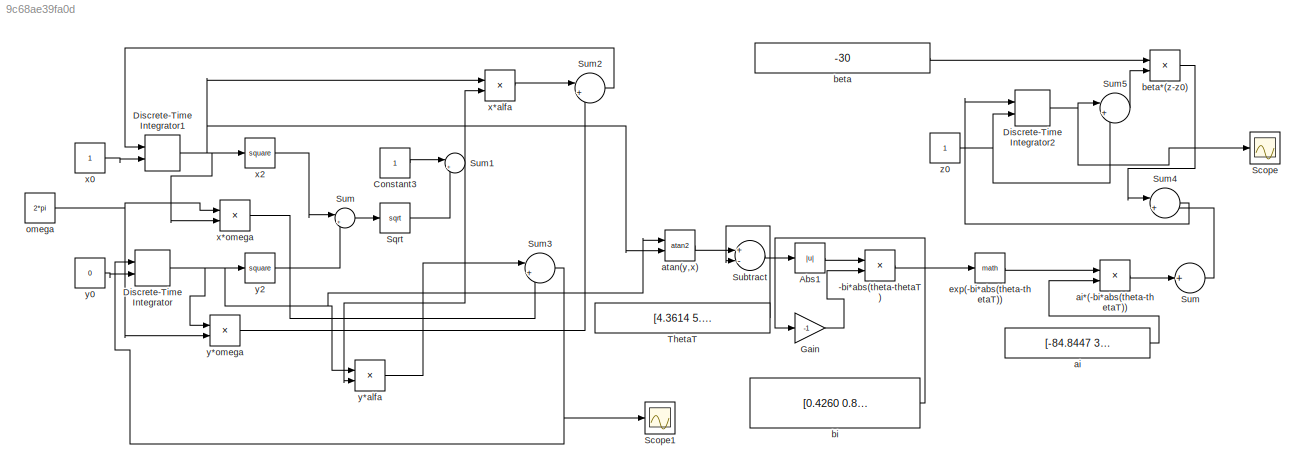
MODEL slx_9c68ae39fa0d
KIND model
CONFIG AbsTol = auto
CONFIG FixedStep = 0.001
CONFIG MaxStep = auto
CONFIG MinStep = auto
CONFIG RelTol = 1e-3
CONFIG SampleTimeConstraint = Unconstrained
CONFIG Solver = ode1
CONFIG SolverMode = Auto
CONFIG SolverName = ode1
CONFIG StartTime = 0.0
CONFIG StopTime = 3
BLOCK [Product] -bi*abs(theta-thetaT)
  InputSameDT = off
  OutDataTypeStr = Inherit: Inherit via internal rule
  Ports = [2, 1]
  RndMeth = Floor
  SaturateOnIntegerOverflow = off
BLOCK [Abs] Abs1
  SaturateOnIntegerOverflow = off
BLOCK [Constant] Constant3
BLOCK [DiscreteIntegrator] Discrete-Time Integrator
  ICPrevOutput = DiscIntNeverNeededParam
  ICPrevScaledInput = DiscIntNeverNeededParam
  InitialConditionSetting = State (most efficient)
  InitialConditionSource = external
  Ports = [2, 1]
  SampleTime = 0.001
BLOCK [DiscreteIntegrator] Discrete-Time Integrator1
  ICPrevOutput = DiscIntNeverNeededParam
  ICPrevScaledInput = DiscIntNeverNeededParam
  InitialConditionSetting = State (most efficient)
  InitialConditionSource = external
  Ports = [2, 1]
  SampleTime = 0.001
BLOCK [DiscreteIntegrator] Discrete-Time Integrator2
  ICPrevOutput = DiscIntNeverNeededParam
  ICPrevScaledInput = DiscIntNeverNeededParam
  InitialConditionSetting = State (most efficient)
  InitialConditionSource = external
  Ports = [2, 1]
  SampleTime = 0.001
BLOCK [Gain] Gain
  Gain = -1
  OutDataTypeStr = Inherit: Inherit via internal rule
  ParamDataTypeStr = Inherit: Inherit via internal rule
  SaturateOnIntegerOverflow = off
BLOCK [Scope] Scope
  Ports = [1]
  ScopeSpecificationString = Simulink.scopes.TimeScopeBlockCfg('CurrentConfiguration', extmgr.ConfigurationSet(extmgr.Configuration('Core','General UI',true),extmgr.Configuration('Core','Source UI',true),extmgr.Configuration('Sources','WiredSimulink',true,'SampleTime','0.001'),extmgr.Configuration('Visuals','Time Domain',true,'SerializedDisplays',{struct('MinYLimReal','-2.79316','MaxYLimReal','1.42146','YLabelReal','','MinYLi...<+1496ch>
BLOCK [Scope] Scope1
  Ports = [1]
  ScopeSpecificationString = Simulink.scopes.TimeScopeBlockCfg('CurrentConfiguration', extmgr.ConfigurationSet(extmgr.Configuration('Core','General UI',true),extmgr.Configuration('Core','Source UI',true),extmgr.Configuration('Sources','WiredSimulink',true,'DataLoggingVariableName','ScopeData1'),extmgr.Configuration('Visuals','Time Domain',true,'SerializedDisplays',{struct('MinYLimReal','-7.99719','MaxYLimReal','8.00112','YLab...<+1363ch>
BLOCK [Sqrt] Sqrt
BLOCK [Sum] Subtract
  InputSameDT = off
  Inputs = +-
  OutDataTypeStr = Inherit: Inherit via internal rule
  Ports = [2, 1]
  SaturateOnIntegerOverflow = off
BLOCK [Sum] Sum
  IconShape = round
  InputSameDT = off
  Inputs = |++
  OutDataTypeStr = Inherit: Inherit via internal rule
  Ports = [2, 1]
  SaturateOnIntegerOverflow = off
BLOCK [Sum] Sum 
  InputSameDT = off
  Inputs = +
  OutDataTypeStr = Inherit: Inherit via internal rule
  Ports = [1, 1]
  SaturateOnIntegerOverflow = off
BLOCK [Sum] Sum1
  IconShape = round
  InputSameDT = off
  Inputs = |+-
  OutDataTypeStr = Inherit: Inherit via internal rule
  Ports = [2, 1]
  SaturateOnIntegerOverflow = off
BLOCK [Sum] Sum2
  IconShape = round
  InputSameDT = off
  Inputs = |+-
  OutDataTypeStr = Inherit: Inherit via internal rule
  Ports = [2, 1]
  SaturateOnIntegerOverflow = off
BLOCK [Sum] Sum3
  IconShape = round
  InputSameDT = off
  Inputs = |++
  OutDataTypeStr = Inherit: Inherit via internal rule
  Ports = [2, 1]
  SaturateOnIntegerOverflow = off
BLOCK [Sum] Sum4
  IconShape = round
  InputSameDT = off
  Inputs = |++
  OutDataTypeStr = Inherit: Inherit via internal rule
  Ports = [2, 1]
  SaturateOnIntegerOverflow = off
BLOCK [Sum] Sum5
  IconShape = round
  InputSameDT = off
  Inputs = |+-
  OutDataTypeStr = Inherit: Inherit via internal rule
  Ports = [2, 1]
  SaturateOnIntegerOverflow = off
BLOCK [Constant] ThetaT
  Value = [4.3614 5.6522]
BLOCK [Constant] ai
  Value = [-84.8447 35.2495]
BLOCK [Product] ai*(-bi*abs(theta-thetaT))
  InputSameDT = off
  OutDataTypeStr = Inherit: Inherit via internal rule
  Ports = [2, 1]
  RndMeth = Floor
  SaturateOnIntegerOverflow = off
BLOCK [Trigonometry] atan(y,x)
  Operator = atan2
  Ports = [2, 1]
BLOCK [Constant] beta
  Value = -30
BLOCK [Product] beta*(z-z0)
  InputSameDT = off
  OutDataTypeStr = Inherit: Inherit via internal rule
  Ports = [2, 1]
  RndMeth = Floor
  SaturateOnIntegerOverflow = off
BLOCK [Constant] bi
  Value = [0.4260 0.8688]
BLOCK [Math] exp(-bi*abs(theta-thetaT))
  Ports = [1, 1]
BLOCK [Constant] omega
  Value = 2*pi
BLOCK [Product] x*alfa
  InputSameDT = off
  OutDataTypeStr = Inherit: Inherit via internal rule
  Ports = [2, 1]
  RndMeth = Floor
  SaturateOnIntegerOverflow = off
BLOCK [Product] x*omega
  InputSameDT = off
  OutDataTypeStr = Inherit: Inherit via internal rule
  Ports = [2, 1]
  RndMeth = Floor
  SaturateOnIntegerOverflow = off
BLOCK [Constant] x0
BLOCK [Math] x2
  Operator = square
  Ports = [1, 1]
BLOCK [Product] y*alfa
  InputSameDT = off
  OutDataTypeStr = Inherit: Inherit via internal rule
  Ports = [2, 1]
  RndMeth = Floor
  SaturateOnIntegerOverflow = off
BLOCK [Product] y*omega
  InputSameDT = off
  OutDataTypeStr = Inherit: Inherit via internal rule
  Ports = [2, 1]
  RndMeth = Floor
  SaturateOnIntegerOverflow = off
BLOCK [Constant] y0
  Value = 0
BLOCK [Math] y2
  Operator = square
  Ports = [1, 1]
BLOCK [Constant] z0
LINE -bi*abs(theta-thetaT):1 -> exp(-bi*abs(theta-thetaT)):1
LINE Abs1:1 -> -bi*abs(theta-thetaT):1
LINE Constant3:1 -> Sum1:1
NET Discrete-Time Integrator1:1 -> atan(y,x):2, x*alfa:1, x*omega:2, x2:1
NET Discrete-Time Integrator2:1 -> Scope:1, Sum5:1
NET Discrete-Time Integrator:1 -> atan(y,x):1, y*alfa:1, y*omega:1, y2:1
LINE Gain:1 -> -bi*abs(theta-thetaT):2
LINE Sqrt:1 -> Sum1:2
LINE Subtract:1 -> Abs1:1
LINE Sum :1 -> Sum4:2
NET Sum1:1 -> x*alfa:2, y*alfa:2
LINE Sum2:1 -> Discrete-Time Integrator1:1
NET Sum3:1 -> Discrete-Time Integrator:1, Scope1:1
LINE Sum4:1 -> Discrete-Time Integrator2:1
LINE Sum5:1 -> beta*(z-z0):2
LINE Sum:1 -> Sqrt:1
LINE ThetaT:1 -> Subtract:2
LINE ai*(-bi*abs(theta-thetaT)):1 -> Sum :1
LINE ai:1 -> ai*(-bi*abs(theta-thetaT)):2
LINE atan(y,x):1 -> Subtract:1
LINE beta*(z-z0):1 -> Sum4:1
LINE beta:1 -> beta*(z-z0):1
LINE bi:1 -> Gain:1
LINE exp(-bi*abs(theta-thetaT)):1 -> ai*(-bi*abs(theta-thetaT)):1
NET omega:1 -> x*omega:1, y*omega:2
LINE x*alfa:1 -> Sum2:1
LINE x*omega:1 -> Sum3:2
LINE x0:1 -> Discrete-Time Integrator1:2
LINE x2:1 -> Sum:1
LINE y*alfa:1 -> Sum3:1
LINE y*omega:1 -> Sum2:2
LINE y0:1 -> Discrete-Time Integrator:2
LINE y2:1 -> Sum:2
NET z0:1 -> Discrete-Time Integrator2:2, Sum5:2
note: NET lines group one-source signal fan-out (src -> all destinations, sorted); 1:1 wires keep LINE
